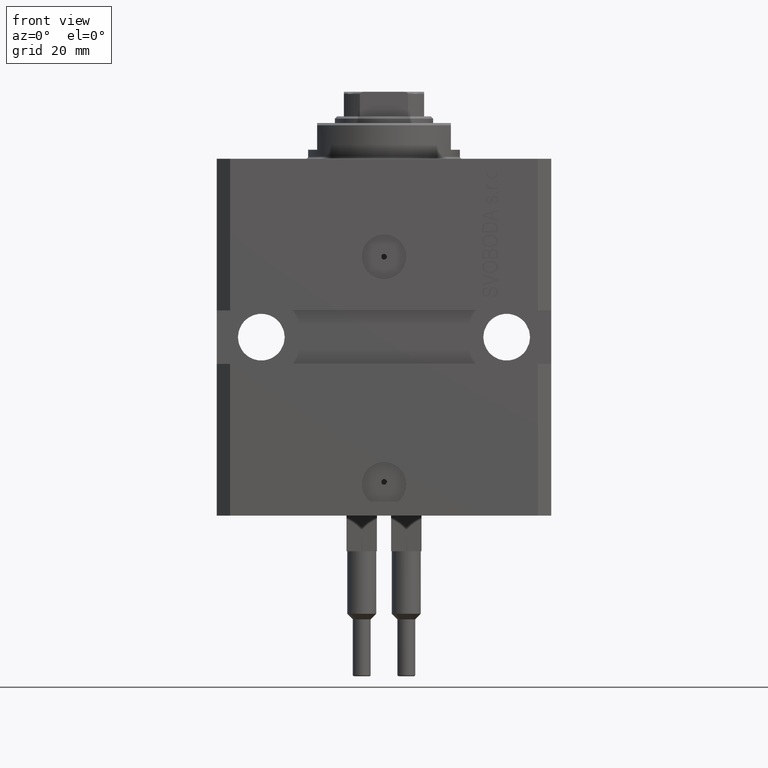
[diagram: clean part render]
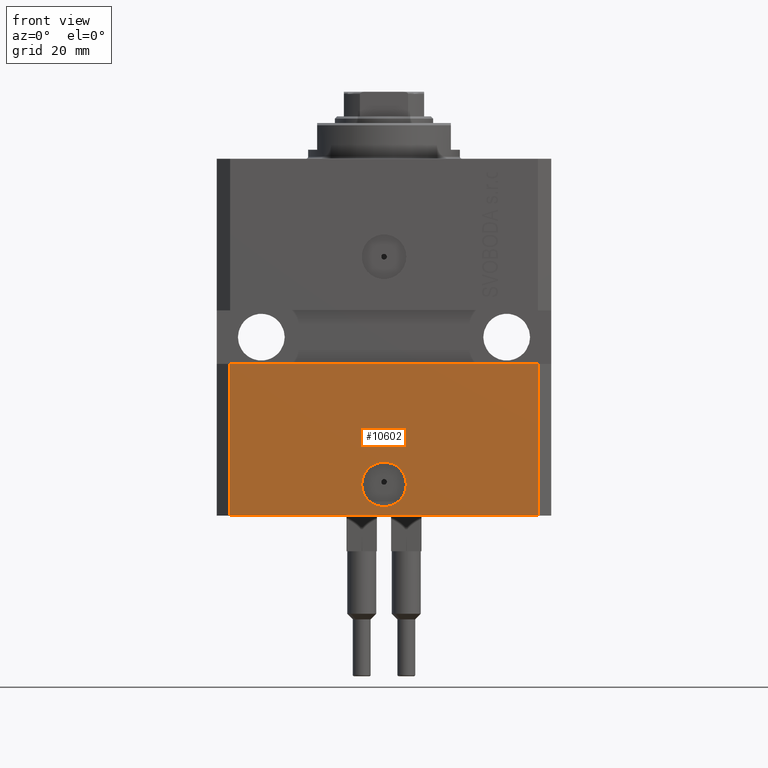
[diagram: same view with one face highlighted and labeled with its STEP entity id]
A machine part, front view. The second image highlights one B-rep face of the part: STEP entity #10602.
In plain terms, the highlighted planar face has unit normal (0, -1, 0).
Its self-contained STEP definition (entity closure, byte-faithful):
#26 = ORIENTED_EDGE ( 'NONE', *, *, #47167, .T. ) ;
#86 = VERTEX_POINT ( 'NONE', #32569 ) ;
#296 = EDGE_LOOP ( 'NONE', ( #13441, #9040, #26, #20678 ) ) ;
#2772 = VERTEX_POINT ( 'NONE', #5799 ) ;
#3067 = DIRECTION ( 'NONE',  ( 1.000000000000000000, 0.000000000000000000, 0.000000000000000000 ) ) ;
#5799 = CARTESIAN_POINT ( 'NONE',  ( 34.49999999999999289, -27.49999999999999645, -80.00000000000000000 ) ) ;
#6291 = FACE_OUTER_BOUND ( 'NONE', #296, .T. ) ;
#6734 = CARTESIAN_POINT ( 'NONE',  ( -34.49999999999998579, -27.49999999999999645, -80.00000000000000000 ) ) ;
#9040 = ORIENTED_EDGE ( 'NONE', *, *, #21971, .F. ) ;
#10380 = DIRECTION ( 'NONE',  ( 1.176083712526788232E-16, -1.000000000000000000, 0.000000000000000000 ) ) ;
#10602 = ADVANCED_FACE ( 'NONE', ( #24820, #6291 ), #21157, .T. ) ;
#10703 = DIRECTION ( 'NONE',  ( 1.000000000000000000, 9.251858538542972814E-17, 0.000000000000000000 ) ) ;
#11041 = EDGE_CURVE ( 'NONE', #28823, #16936, #44755, .T. ) ;
#12154 = DIRECTION ( 'NONE',  ( 0.000000000000000000, 0.000000000000000000, 1.000000000000000000 ) ) ;
#12766 = CARTESIAN_POINT ( 'NONE',  ( 34.49999999999999289, -27.49999999999999289, -46.00000000000000000 ) ) ;
#13199 = EDGE_CURVE ( 'NONE', #22252, #36307, #22134, .T. ) ;
#13441 = ORIENTED_EDGE ( 'NONE', *, *, #13199, .F. ) ;
#13819 = VECTOR ( 'NONE', #35736, 1000.000000000000000 ) ;
#14647 = EDGE_CURVE ( 'NONE', #2772, #36307, #19816, .T. ) ;
#15104 = AXIS2_PLACEMENT_3D ( 'NONE', #22523, #43969, #37378 ) ;
#16936 = VERTEX_POINT ( 'NONE', #35086 ) ;
#17496 = CARTESIAN_POINT ( 'NONE',  ( -34.49999999999998579, -27.49999999999999645, -80.00000000000000000 ) ) ;
#19816 = LINE ( 'NONE', #24203, #42555 ) ;
#19887 = ORIENTED_EDGE ( 'NONE', *, *, #11041, .F. ) ;
#20678 = ORIENTED_EDGE ( 'NONE', *, *, #14647, .T. ) ;
#21157 = PLANE ( 'NONE',  #47895 ) ;
#21971 = EDGE_CURVE ( 'NONE', #86, #22252, #22875, .T. ) ;
#22134 = LINE ( 'NONE', #44052, #42524 ) ;
#22252 = VERTEX_POINT ( 'NONE', #32054 ) ;
#22523 = CARTESIAN_POINT ( 'NONE',  ( 0.000000000000000000, -27.49999999999999645, -73.00000000000000000 ) ) ;
#22875 = LINE ( 'NONE', #23353, #40355 ) ;
#23353 = CARTESIAN_POINT ( 'NONE',  ( -34.49999999999998579, -27.49999999999999645, -80.00000000000000000 ) ) ;
#23734 = EDGE_LOOP ( 'NONE', ( #19887, #47453 ) ) ;
#23764 = AXIS2_PLACEMENT_3D ( 'NONE', #30071, #10380, #3067 ) ;
#24203 = CARTESIAN_POINT ( 'NONE',  ( 34.49999999999999289, -27.49999999999999645, -80.00000000000000000 ) ) ;
#24820 = FACE_BOUND ( 'NONE', #23734, .T. ) ;
#28823 = VERTEX_POINT ( 'NONE', #32001 ) ;
#30071 = CARTESIAN_POINT ( 'NONE',  ( 0.000000000000000000, -27.49999999999999645, -73.00000000000000000 ) ) ;
#32001 = CARTESIAN_POINT ( 'NONE',  ( 5.000000000000006217, -27.49999999999999645, -73.00000000000000000 ) ) ;
#32054 = CARTESIAN_POINT ( 'NONE',  ( -34.49999999999998579, -27.50000000000000000, -46.00000000000000000 ) ) ;
#32354 = DIRECTION ( 'NONE',  ( 0.000000000000000000, -0.000000000000000000, -1.000000000000000000 ) ) ;
#32569 = CARTESIAN_POINT ( 'NONE',  ( -34.49999999999998579, -27.49999999999999645, -80.00000000000000000 ) ) ;
#35086 = CARTESIAN_POINT ( 'NONE',  ( -5.000000000000006217, -27.49999999999999645, -73.00000000000000000 ) ) ;
#35736 = DIRECTION ( 'NONE',  ( 1.000000000000000000, 0.000000000000000000, 0.000000000000000000 ) ) ;
#35999 = DIRECTION ( 'NONE',  ( 0.000000000000000000, -1.000000000000000000, 0.000000000000000000 ) ) ;
#36032 = EDGE_CURVE ( 'NONE', #16936, #28823, #42320, .T. ) ;
#36307 = VERTEX_POINT ( 'NONE', #12766 ) ;
#37378 = DIRECTION ( 'NONE',  ( 1.000000000000000000, 0.000000000000000000, 0.000000000000000000 ) ) ;
#38797 = DIRECTION ( 'NONE',  ( 0.000000000000000000, 0.000000000000000000, 1.000000000000000000 ) ) ;
#40355 = VECTOR ( 'NONE', #12154, 1000.000000000000000 ) ;
#42320 = CIRCLE ( 'NONE', #15104, 5.000000000000006217 ) ;
#42524 = VECTOR ( 'NONE', #10703, 1000.000000000000000 ) ;
#42555 = VECTOR ( 'NONE', #38797, 1000.000000000000000 ) ;
#43969 = DIRECTION ( 'NONE',  ( 1.176083712526788232E-16, -1.000000000000000000, 0.000000000000000000 ) ) ;
#44052 = CARTESIAN_POINT ( 'NONE',  ( -37.50000000000000000, -27.50000000000000000, -46.00000000000000000 ) ) ;
#44755 = CIRCLE ( 'NONE', #23764, 5.000000000000006217 ) ;
#47167 = EDGE_CURVE ( 'NONE', #86, #2772, #47655, .T. ) ;
#47453 = ORIENTED_EDGE ( 'NONE', *, *, #36032, .F. ) ;
#47655 = LINE ( 'NONE', #6734, #13819 ) ;
#47895 = AXIS2_PLACEMENT_3D ( 'NONE', #17496, #35999, #32354 ) ;